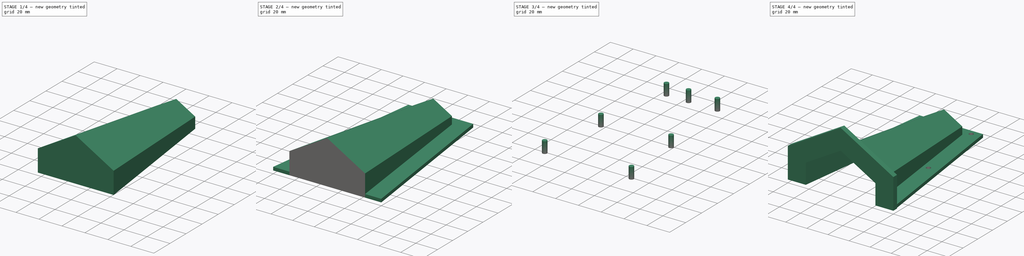
[diagram: build sequence overview — one tinted view per stage of 4, left to right]
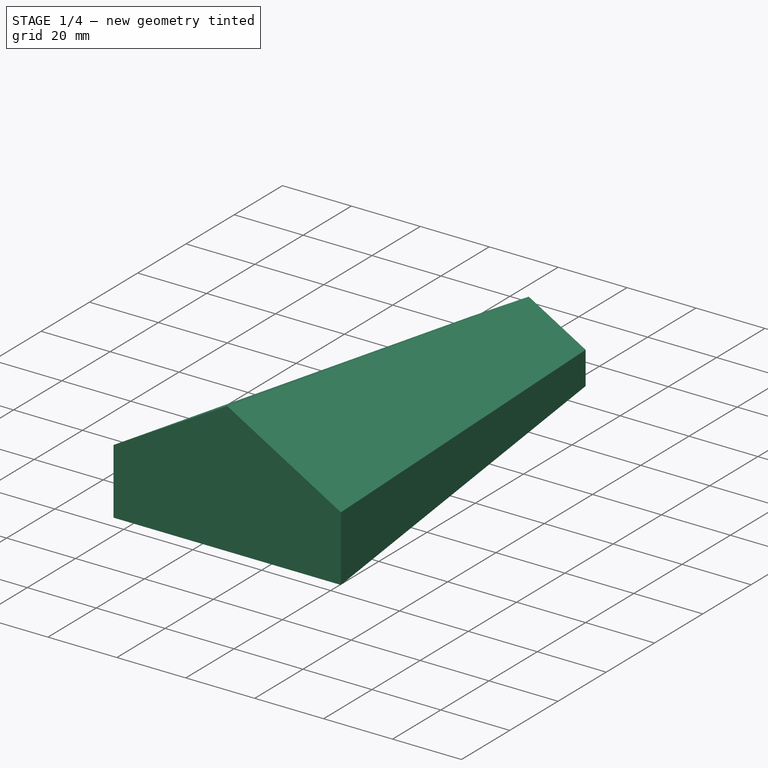
[diagram: stage 1 of 4 — iso view after this stage's code; geometry added in this stage tinted green]
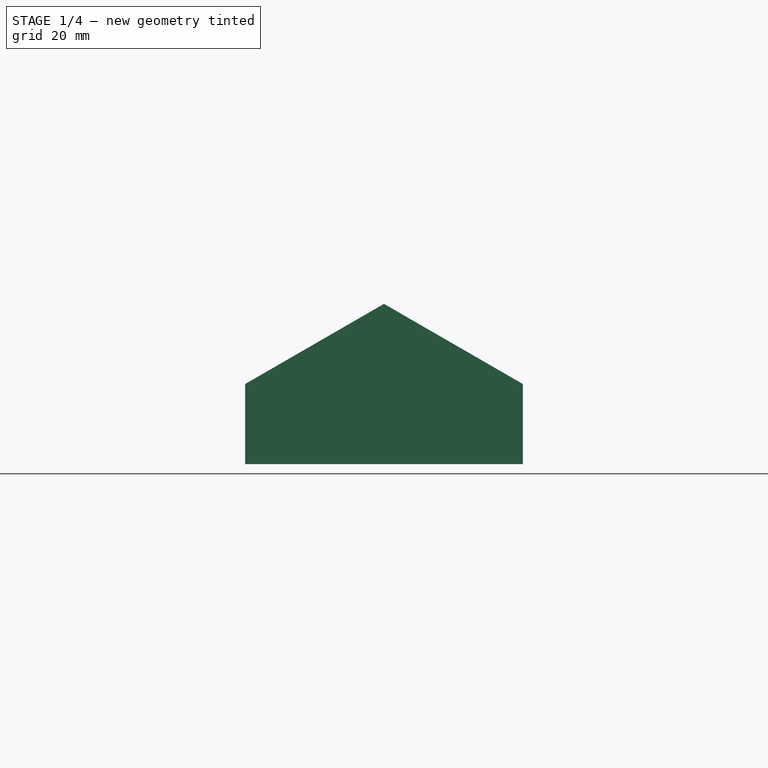
[diagram: stage 1 of 4 — front view after this stage's code; geometry added in this stage tinted green]
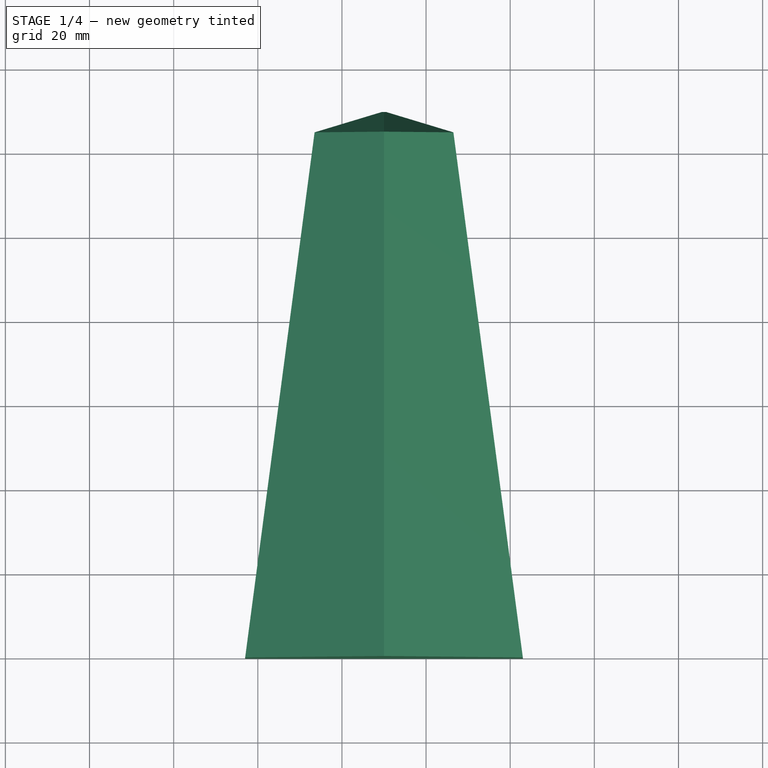
[diagram: stage 1 of 4 — top view after this stage's code; geometry added in this stage tinted green]
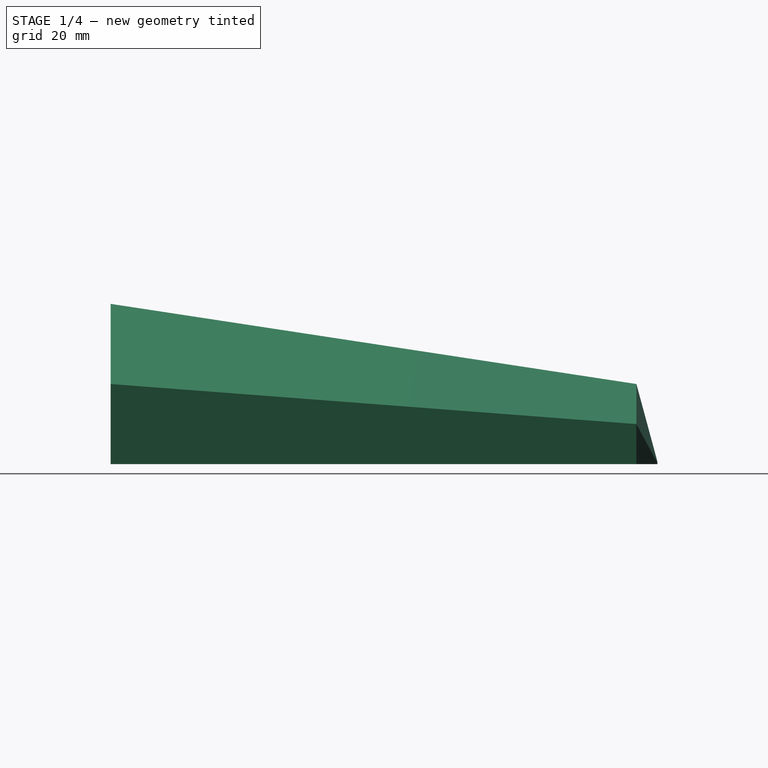
[diagram: stage 1 of 4 — right view after this stage's code; geometry added in this stage tinted green]
FCSTD DOCUMENT  (FreeCAD 0.20R29177 (Git))
Label: Zuckerhut-Form
License: All rights reserved
LicenseURL: http://en.wikipedia.org/wiki/All_rights_reserved
objects: Sketcher::SketchObject×9, Part::Face×9, Part::Extrusion×3, Part::Loft×3, Part::Fuse×3, Part::Cut×2, PartDesign::Body×1
note: 30 computed .brp shape members not serialized (recipe doc carries the construction recipe); baked Part::Feature solids carry a one-line shape summary decoded from their .brp

FEATURE [Sketcher::SketchObject] Sketch
  FullyConstrained = true
  sketch-geometry (4):
    g0: LineSegment StartX=0 StartY=0 StartZ=0 EndX=100 EndY=0 EndZ=0
    g1: LineSegment StartX=100 StartY=0 StartZ=0 EndX=80 EndY=150 EndZ=0
    g2: LineSegment StartX=80 StartY=150 StartZ=0 EndX=20 EndY=150 EndZ=0
    g3: LineSegment StartX=20 StartY=150 StartZ=0 EndX=0 EndY=0 EndZ=0
  constraints (11):
    c: Coincident(g0,g1)
    c: Coincident(g1,g2)
    c: Coincident(g2,g3)
    c: Coincident(g3,g0)
    c: Horizontal(g0)
    c: Horizontal(g2)
    c: Coincident(g0,g-1)
    c: DistanceY(g1,g1) = 150
    c: DistanceX(g0,g0) = 100
    c: DistanceX(g2,g2) = 60
    c: DistanceX(g0,g2) = 20
FEATURE [Part::Face] Face
  FaceMakerClass = Part::FaceMakerBullseye
  Sources = -> [Sketch]
FEATURE [Part::Extrusion] Extrude
  Base = -> Face
  Dir = (0,0,1)
  DirMode = 2
  FaceMakerClass = Part::FaceMakerBullseye
  LengthFwd = 3
  LengthRev = 0
  Solid = false
  Symmetric = false
FEATURE [Part::Loft] Loft001
  Closed = false
  MaxDegree = 5
  Ruled = false
  Sections = -> [Face003,Face004]
  Solid = true
FEATURE [Part::Face] Face006
  FaceMakerClass = Part::FaceMakerBullseye
  Placement = pos=(0,125,0) rot=(0,0,1;0rad)
  Sources = -> [Sketch004]
FEATURE [Part::Loft] Loft002
  Closed = false
  MaxDegree = 5
  Ruled = false
  Sections = -> [Face006,Face005]
  Solid = true
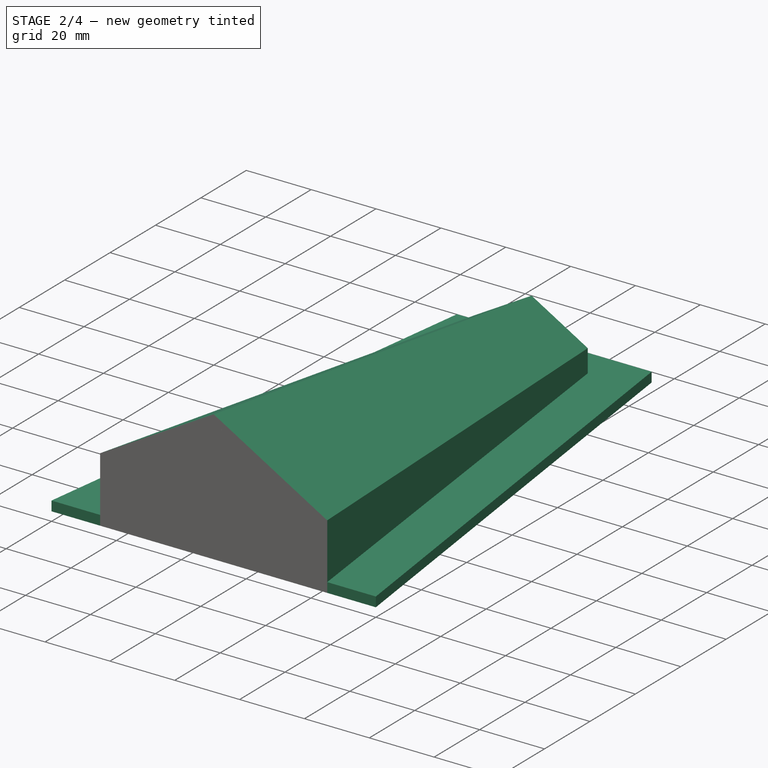
[diagram: stage 2 of 4 — iso view after this stage's code; geometry added in this stage tinted green]
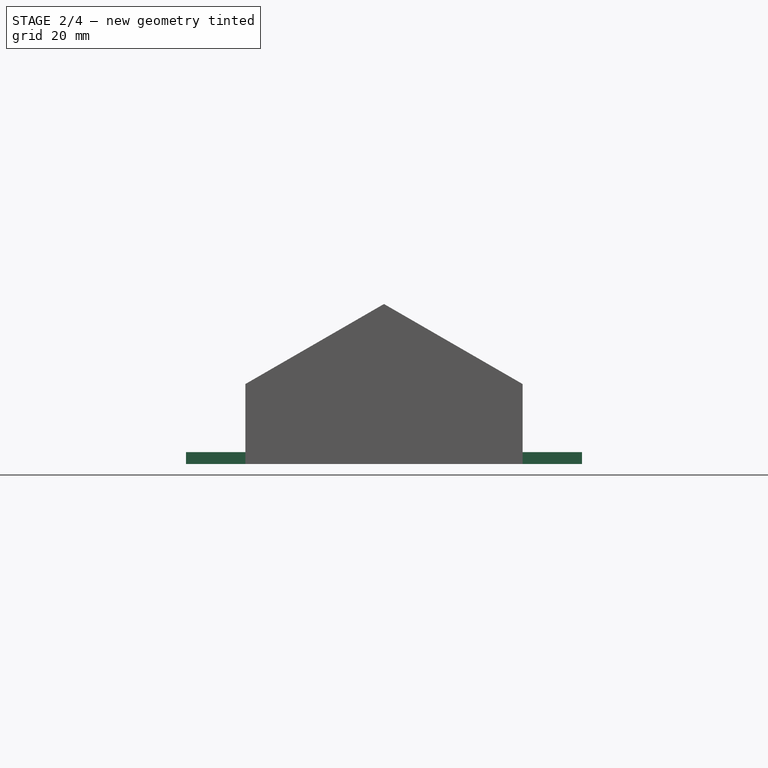
[diagram: stage 2 of 4 — front view after this stage's code; geometry added in this stage tinted green]
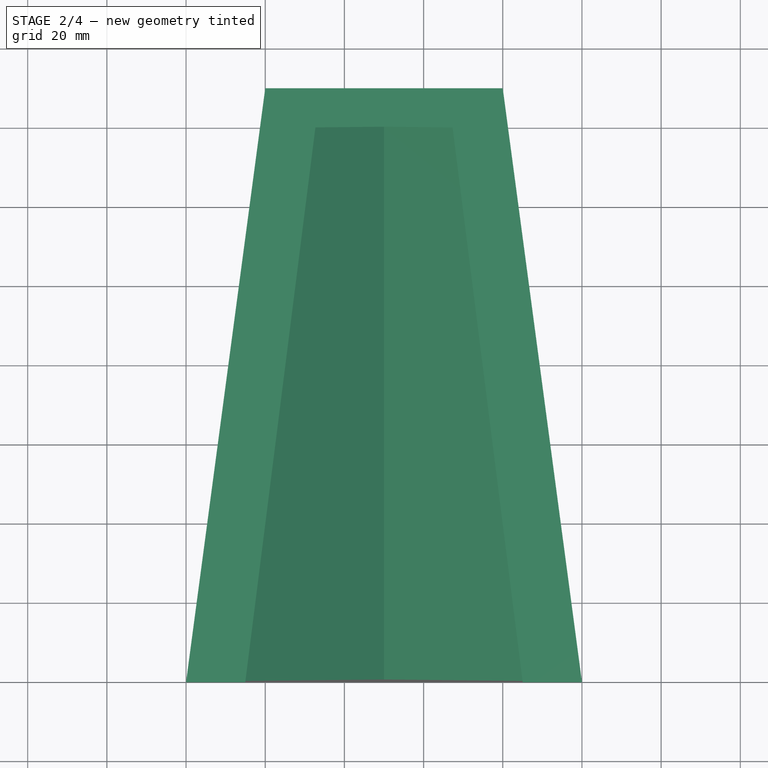
[diagram: stage 2 of 4 — top view after this stage's code; geometry added in this stage tinted green]
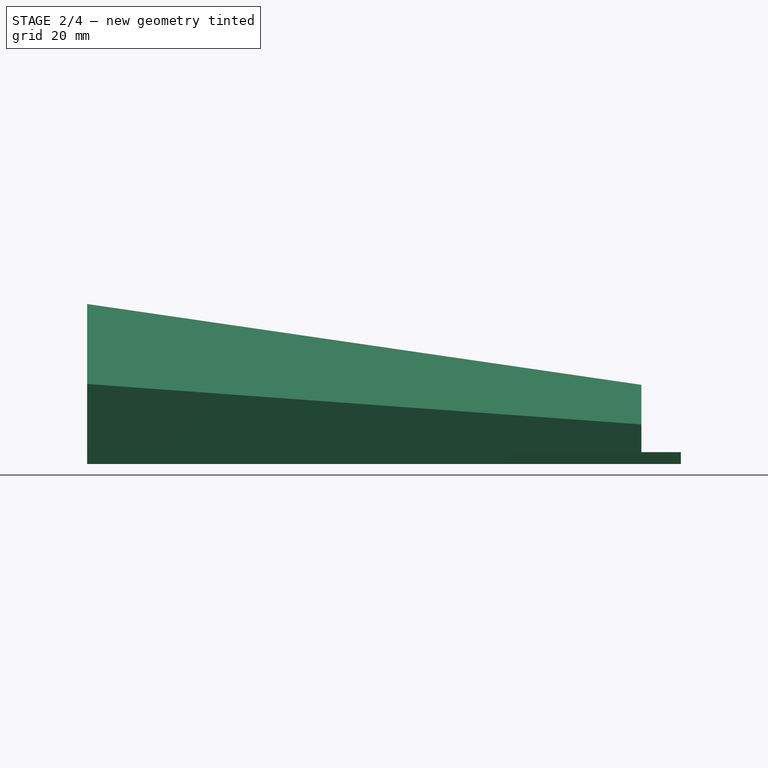
[diagram: stage 2 of 4 — right view after this stage's code; geometry added in this stage tinted green]
FEATURE [Sketcher::SketchObject] Sketch001
  ExternalGeometry = -> [Extrude]
  FullyConstrained = true
  MapMode = 5
  Placement = pos=(0,0,0) rot=(1,0,0;1.5708rad)
  Support = -> [Extrude]
  sketch-geometry (7):
    g0: LineSegment StartX=85 StartY=0 StartZ=0 EndX=85 EndY=20.2073 EndZ=0
    g1: LineSegment StartX=15 StartY=0 StartZ=0 EndX=15 EndY=20.2073 EndZ=0
    g2: LineSegment StartX=15 StartY=20.2073 StartZ=0 EndX=50 EndY=40.4145 EndZ=0
    g3: LineSegment StartX=50 StartY=40.4145 StartZ=0 EndX=85 EndY=20.2073 EndZ=0
    g4: LineSegment StartX=50 StartY=40.4145 StartZ=0 EndX=50 EndY=0 EndZ=0
    g5: LineSegment StartX=50 StartY=0 StartZ=0 EndX=15 EndY=20.2073 EndZ=0
    g6: LineSegment StartX=15 StartY=0 StartZ=0 EndX=85 EndY=0 EndZ=0
  constraints (20):
    c: Vertical(g0)
    c: Vertical(g1)
    c: Coincident(g2,g1)
    c: Coincident(g3,g2)
    c: Coincident(g3,g0)
    c: Equal(g2,g3)
    c: Angle(g2,g3) = 2.0944
    c: Equal(g1,g0)
    c: Coincident(g4,g2)
    c: Vertical(g4)
    c: Coincident(g5,g4)
    c: Coincident(g5,g1)
    c: Equal(g5,g4)
    c: Horizontal(g4,g1)
    c: PointOnObject(g1,g-1)
    c: DistanceX(g-1,g1) = 15
    c: PointOnObject(g0,g-1)
    c: DistanceX(g0,g-3) = 15
    c: Coincident(g6,g1)
    c: Coincident(g6,g0)
FEATURE [Part::Face] Face001
  FaceMakerClass = Part::FaceMakerBullseye
  Sources = -> [Sketch001]
FEATURE [Sketcher::SketchObject] Sketch002
  ExternalGeometry = -> [Sketch001]
  FullyConstrained = true
  MapMode = 5
  Placement = pos=(0,0,0) rot=(1,0,0;1.5708rad)
  sketch-geometry (7):
    g0: LineSegment StartX=32.6795 StartY=0 StartZ=0 EndX=32.6795 EndY=10 EndZ=0
    g1: LineSegment StartX=32.6795 StartY=10 StartZ=0 EndX=50 EndY=20 EndZ=0
    g2: LineSegment StartX=67.3205 StartY=0 StartZ=0 EndX=67.3205 EndY=10 EndZ=0
    g3: LineSegment StartX=67.3205 StartY=10 StartZ=0 EndX=50 EndY=20 EndZ=0
    g4: LineSegment StartX=32.6795 StartY=0 StartZ=0 EndX=67.3205 EndY=0 EndZ=0
    g5: LineSegment StartX=50 StartY=20 StartZ=0 EndX=50 EndY=0 EndZ=0
    g6: LineSegment StartX=50 StartY=0 StartZ=0 EndX=32.6795 EndY=10 EndZ=0
  constraints (20):
    c: PointOnObject(g0,g-1)
    c: Vertical(g0)
    c: Coincident(g1,g0)
    c: PointOnObject(g2,g-1)
    c: Vertical(g2)
    c: Coincident(g3,g2)
    c: Coincident(g3,g1)
    c: Coincident(g4,g0)
    c: Coincident(g4,g2)
    c: Equal(g1,g3)
    c: Equal(g0,g2)
    c: Angle(g1,g3) = 2.0944
    c: Coincident(g5,g1)
    c: Vertical(g5)
    c: Coincident(g6,g5)
    c: Coincident(g6,g0)
    c: Angle(g5,g6) = 1.0472
    c: PointOnObject(g5,g-1)
    c: DistanceY(g0,g1) = 20
    c: Vertical(g-4,g1)
FEATURE [Part::Face] Face002
  FaceMakerClass = Part::FaceMakerBullseye
  Placement = pos=(0,140,0) rot=(0,0,1;0rad)
  Sources = -> [Sketch002]
FEATURE [Sketcher::SketchObject] Sketch003
  ExternalGeometry = -> [Sketch001]
  FullyConstrained = true
  MapMode = 5
  Placement = pos=(0,0,0) rot=(1,0,0;1.5708rad)
  sketch-geometry (7):
    g0: LineSegment StartX=17 StartY=0 StartZ=0 EndX=17 EndY=19.0526 EndZ=0
    g1: LineSegment StartX=17 StartY=19.0526 StartZ=0 EndX=50 EndY=38.1051 EndZ=0
    g2: LineSegment StartX=83 StartY=0 StartZ=0 EndX=83 EndY=19.0526 EndZ=0
    g3: LineSegment StartX=83 StartY=19.0526 StartZ=0 EndX=50 EndY=38.1051 EndZ=0
    g4: LineSegment StartX=17 StartY=19.0526 StartZ=0 EndX=50 EndY=0 EndZ=0
    g5: LineSegment StartX=50 StartY=0 StartZ=0 EndX=50 EndY=38.1051 EndZ=0
    g6: LineSegment StartX=17 StartY=0 StartZ=0 EndX=83 EndY=0 EndZ=0
  constraints (20):
    c: PointOnObject(g0,g-1)
    c: Vertical(g0)
    c: Coincident(g1,g0)
    c: PointOnObject(g2,g-1)
    c: Vertical(g2)
    c: Coincident(g3,g2)
    c: Coincident(g3,g1)
    c: Equal(g1,g3)
    c: Equal(g0,g2)
    c: Angle(g1,g3) = 2.0944
    c: Vertical(g-4,g1)
    c: DistanceX(g-3,g0) = 2
    c: Coincident(g4,g0)
    c: Coincident(g5,g4)
    c: Coincident(g5,g1)
    c: Vertical(g5)
    c: Equal(g4,g5)
    c: PointOnObject(g4,g-1)
    c: Coincident(g6,g0)
    c: Coincident(g6,g2)
FEATURE [Sketcher::SketchObject] Sketch004
  ExternalGeometry = -> [Sketch001]
  FullyConstrained = true
  MapMode = 5
  Placement = pos=(0,0,0) rot=(1,0,0;1.5708rad)
  sketch-geometry (7):
    g0: LineSegment StartX=33.5 StartY=0 StartZ=0 EndX=33.5 EndY=9.52628 EndZ=0
    g1: LineSegment StartX=66.5 StartY=0 StartZ=0 EndX=66.5 EndY=9.52628 EndZ=0
    g2: LineSegment StartX=66.5 StartY=9.52628 StartZ=0 EndX=50 EndY=19.0526 EndZ=0
    g3: LineSegment StartX=33.5 StartY=9.52628 StartZ=0 EndX=50 EndY=19.0526 EndZ=0
    g4: LineSegment StartX=33.5 StartY=9.52628 StartZ=0 EndX=50 EndY=-1.8e-15 EndZ=0
    g5: LineSegment StartX=50 StartY=-1.8e-15 StartZ=0 EndX=50 EndY=19.0526 EndZ=0
    g6: LineSegment StartX=33.5 StartY=0 StartZ=0 EndX=66.5 EndY=0 EndZ=0
  constraints (20):
    c: PointOnObject(g0,g-1)
    c: Vertical(g0)
    c: PointOnObject(g1,g-1)
    c: Vertical(g1)
    c: Coincident(g2,g1)
    c: Coincident(g3,g0)
    c: Coincident(g3,g2)
    c: Equal(g3,g2)
    c: Equal(g1,g0)
    c: Vertical(g-4,g2)
    c: Coincident(g4,g0)
    c: Coincident(g5,g4)
    c: Coincident(g5,g2)
    c: Vertical(g5)
    c: Equal(g4,g5)
    c: Angle(g5,g4) = 1.0472
    c: PointOnObject(g4,g-1)
    c: DistanceX(g0,g1) = 33
    c: Coincident(g6,g0)
    c: Coincident(g6,g1)
FEATURE [Part::Face] Face003
  FaceMakerClass = Part::FaceMakerBullseye
  Placement = pos=(0,125,0) rot=(0,0,1;0rad)
  Sources = -> [Sketch004]
FEATURE [Part::Face] Face004
  FaceMakerClass = Part::FaceMakerBullseye
  Sources = -> [Sketch003]
FEATURE [Sketcher::SketchObject] Sketch005
  ExternalGeometry = -> [Sketch001]
  FullyConstrained = true
  MapMode = 5
  Placement = pos=(0,0,0) rot=(1,0,0;1.5708rad)
  sketch-geometry (7):
    g0: LineSegment StartX=49.5 StartY=0 StartZ=0 EndX=49.5 EndY=0.288675 EndZ=0
    g1: LineSegment StartX=50.5 StartY=0 StartZ=0 EndX=50.5 EndY=0.288675 EndZ=0
    g2: LineSegment StartX=49.5 StartY=0.288675 StartZ=0 EndX=50 EndY=0.57735 EndZ=0
    g3: LineSegment StartX=50 StartY=0.57735 StartZ=0 EndX=50.5 EndY=0.288675 EndZ=0
    g4: LineSegment StartX=49.5 StartY=0 StartZ=0 EndX=50.5 EndY=0 EndZ=0
    g5: LineSegment StartX=49.5 StartY=0.288675 StartZ=0 EndX=50 EndY=0 EndZ=0
    g6: LineSegment StartX=50 StartY=0 StartZ=0 EndX=50 EndY=0.57735 EndZ=0
  constraints (20):
    c: PointOnObject(g0,g-1)
    c: Vertical(g0)
    c: PointOnObject(g1,g-1)
    c: Vertical(g1)
    c: Coincident(g2,g0)
    c: Coincident(g3,g2)
    c: Coincident(g3,g1)
    c: Equal(g3,g2)
    c: Equal(g0,g1)
    c: Coincident(g4,g0)
    c: Coincident(g4,g1)
    c: Coincident(g5,g0)
    c: Coincident(g6,g5)
    c: Coincident(g6,g2)
    c: Vertical(g6)
    c: PointOnObject(g5,g4)
    c: Angle(g6,g5) = 1.0472
    c: DistanceX(g0,g1) = 1
    c: Equal(g6,g5)
    c: Vertical(g-4,g2)
FEATURE [Part::Face] Face005
  FaceMakerClass = Part::FaceMakerBullseye
  Placement = pos=(0,130,0) rot=(0,0,1;0rad)
  Sources = -> [Sketch005]
FEATURE [Sketcher::SketchObject] Sketch006
  FullyConstrained = true
  MapMode = 5
  Placement = pos=(0,125,0) rot=(0,0.707107,0.707107;3.14159rad)
  Support = -> [Face003]
FEATURE [PartDesign::Body] Body
  Origin = -> Origin
FEATURE [Part::Loft] Loft
  Closed = false
  MaxDegree = 5
  Ruled = false
  Sections = -> [Face001,Face002]
  Solid = true
FEATURE [Part::Fuse] Fusion
  Base = -> Extrude
  Tool = -> Loft
FEATURE [Part::Fuse] Fusion001
  Base = -> Loft001
  Tool = -> Loft002
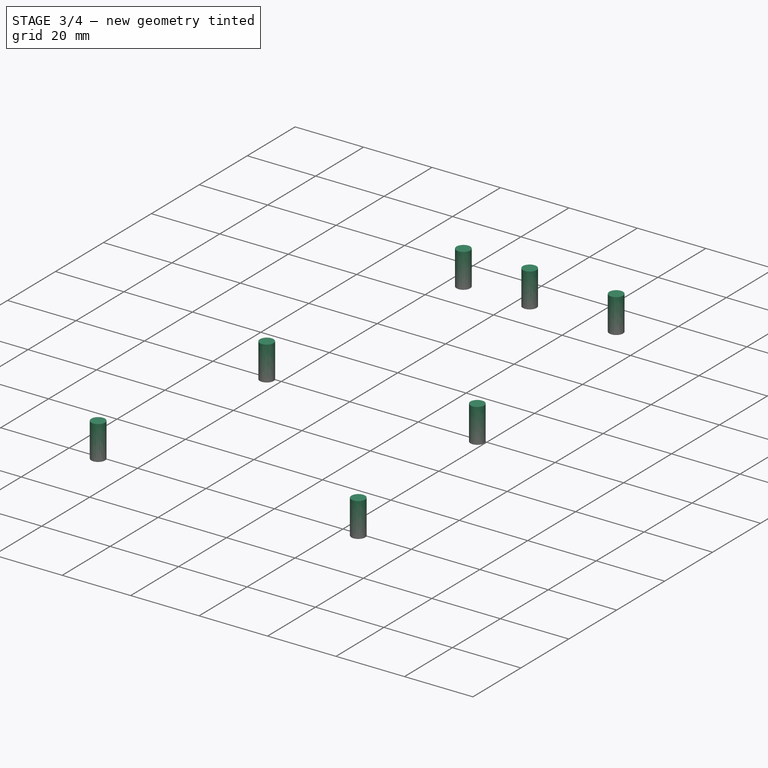
[diagram: stage 3 of 4 — iso view after this stage's code; geometry added in this stage tinted green]
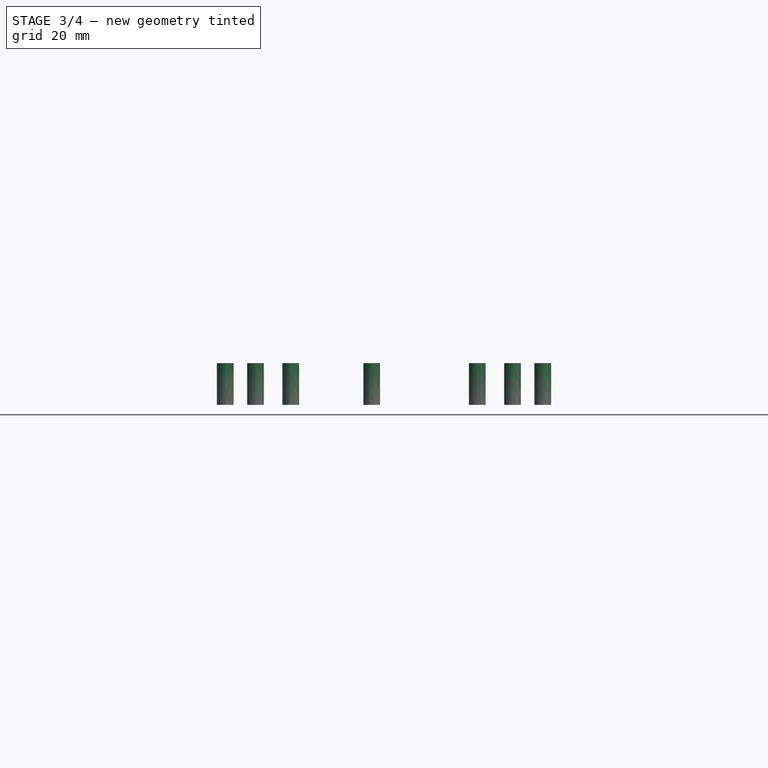
[diagram: stage 3 of 4 — front view after this stage's code; geometry added in this stage tinted green]
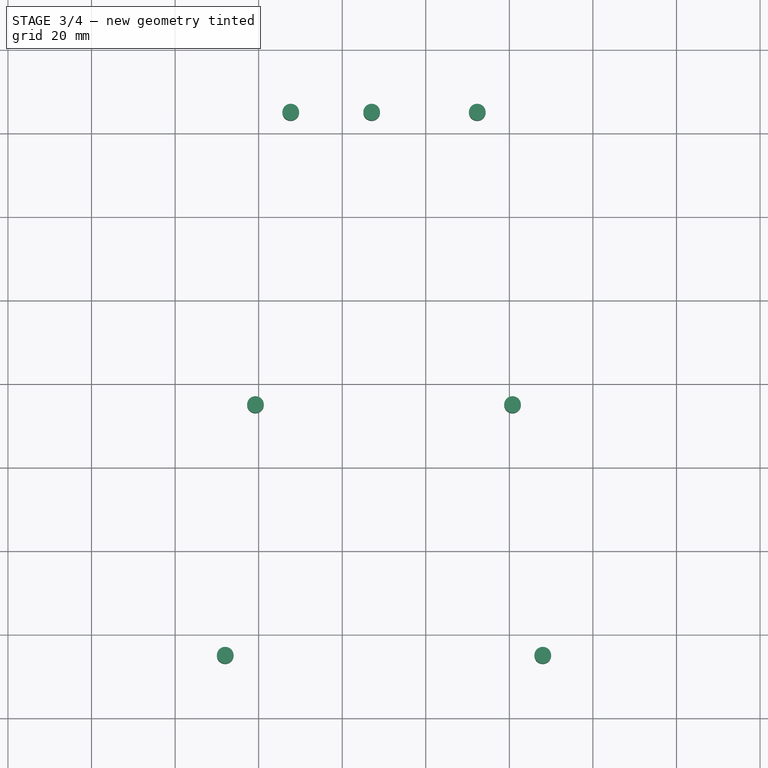
[diagram: stage 3 of 4 — top view after this stage's code; geometry added in this stage tinted green]
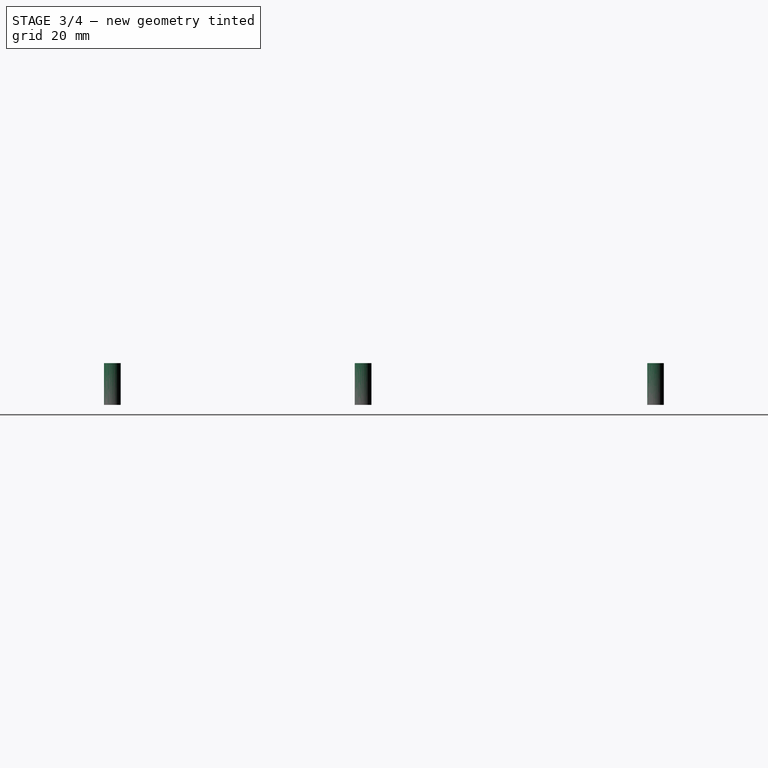
[diagram: stage 3 of 4 — right view after this stage's code; geometry added in this stage tinted green]
FEATURE [Part::Cut] Cut
  Base = -> Fusion
  Tool = -> Fusion001
FEATURE [Sketcher::SketchObject] Sketch007
  ExternalGeometry = -> [Sketch,Cut]
  FullyConstrained = false
  MapMode = 5
  Placement = pos=(0,0,0) rot=(1,0,0;3.14159rad)
  Support = -> [Cut]
  sketch-geometry (11):
    g0: Circle CenterX=27.6795 CenterY=-145 CenterZ=0 NormalX=0 NormalY=0 NormalZ=1 AngleXU=0 Radius=2
    g1: Circle CenterX=47.0508 CenterY=-145 CenterZ=0 NormalX=0 NormalY=0 NormalZ=1 AngleXU=0 Radius=2
    g2: Circle CenterX=72.3205 CenterY=-145 CenterZ=0 NormalX=0 NormalY=0 NormalZ=1 AngleXU=0 Radius=2
    g3: Circle CenterX=80.7633 CenterY=-75 CenterZ=0 NormalX=0 NormalY=0 NormalZ=1 AngleXU=0 Radius=2
    g4: Circle CenterX=19.2367 CenterY=-75 CenterZ=0 NormalX=0 NormalY=0 NormalZ=1 AngleXU=0 Radius=2
    g5: Circle CenterX=12 CenterY=-15 CenterZ=0 NormalX=0 NormalY=0 NormalZ=1 AngleXU=0 Radius=2
    g6: Circle CenterX=88 CenterY=-15 CenterZ=0 NormalX=0 NormalY=0 NormalZ=1 AngleXU=0 Radius=2
    g7: LineSegment StartX=12 StartY=-15 StartZ=0 EndX=27.6795 EndY=-145 EndZ=0
    g8: LineSegment StartX=72.3205 StartY=-145 StartZ=0 EndX=88 EndY=-15 EndZ=0
    g9: LineSegment StartX=19.2367 StartY=-75 StartZ=0 EndX=19.2367 EndY=-150 EndZ=0
    g10: LineSegment StartX=19.2367 StartY=-75 StartZ=0 EndX=19.2367 EndY=0 EndZ=0
  constraints (30):
    c: Diameter(g5) = 4
    c: Diameter(g6) = 4
    c: Diameter(g4) = 4
    c: Diameter(g3) = 4
    c: Diameter(g0) = 4
    c: Diameter(g1) = 4
    c: Diameter(g2) = 4
    c: Horizontal(g5,g6)
    c: Horizontal(g4,g3)
    c: Horizontal(g0,g1)
    c: Horizontal(g0,g2)
    c: DistanceY(g-4,g2) = 5
    c: DistanceY(g5,g-1) = 15
    c: Coincident(g7,g5)
    c: Coincident(g7,g0)
    c: Coincident(g8,g2)
    c: Coincident(g8,g6)
    c: DistanceX(g6,g-4) = 12
    c: DistanceX(g-1,g5) = 12
    c: PointOnObject(g4,g7)
    c: PointOnObject(g3,g8)
    c: DistanceX(g0,g-5) = 5
    c: DistanceX(g-5,g2) = 5
    c: Coincident(g9,g4)
    c: PointOnObject(g9,g-3)
    c: Vertical(g9)
    c: Coincident(g10,g4)
    c: PointOnObject(g10,g-1)
    c: Vertical(g10)
    c: Equal(g10,g9)
FEATURE [Part::Face] Face007
  FaceMakerClass = Part::FaceMakerBullseye
  Sources = -> [Sketch007]
FEATURE [Part::Extrusion] Extrude001
  Base = -> Face007
  Dir = (0,0,1)
  DirMode = 2
  FaceMakerClass = Part::FaceMakerBullseye
  LengthFwd = 10
  LengthRev = 0
  Solid = false
  Symmetric = false
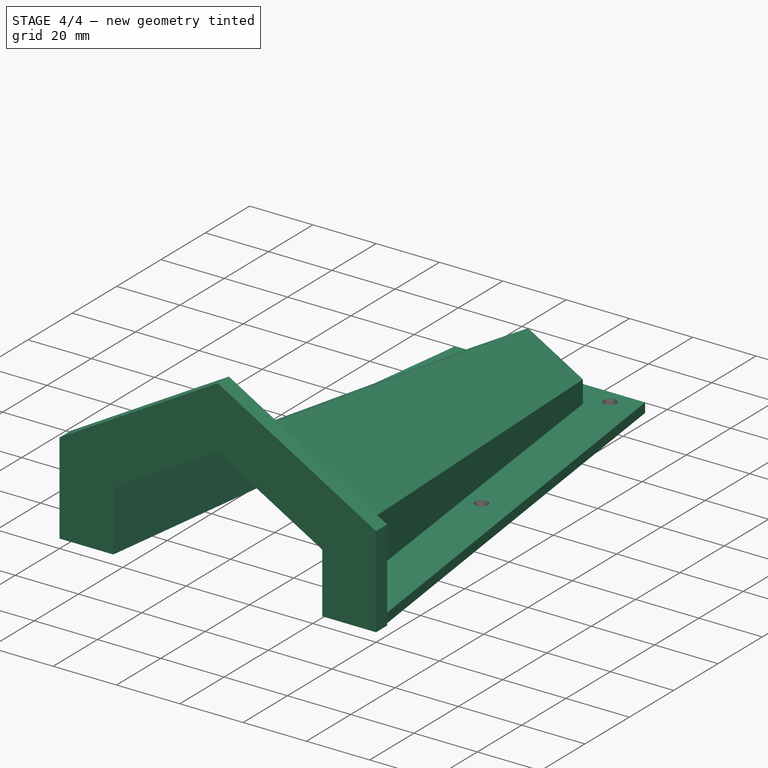
[diagram: stage 4 of 4 — iso view after this stage's code; geometry added in this stage tinted green]
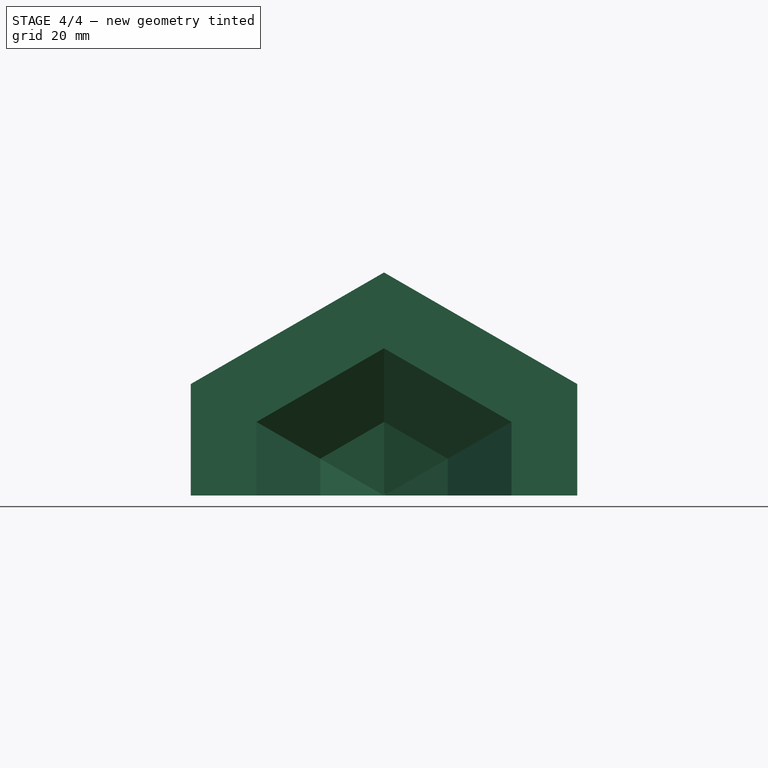
[diagram: stage 4 of 4 — front view after this stage's code; geometry added in this stage tinted green]
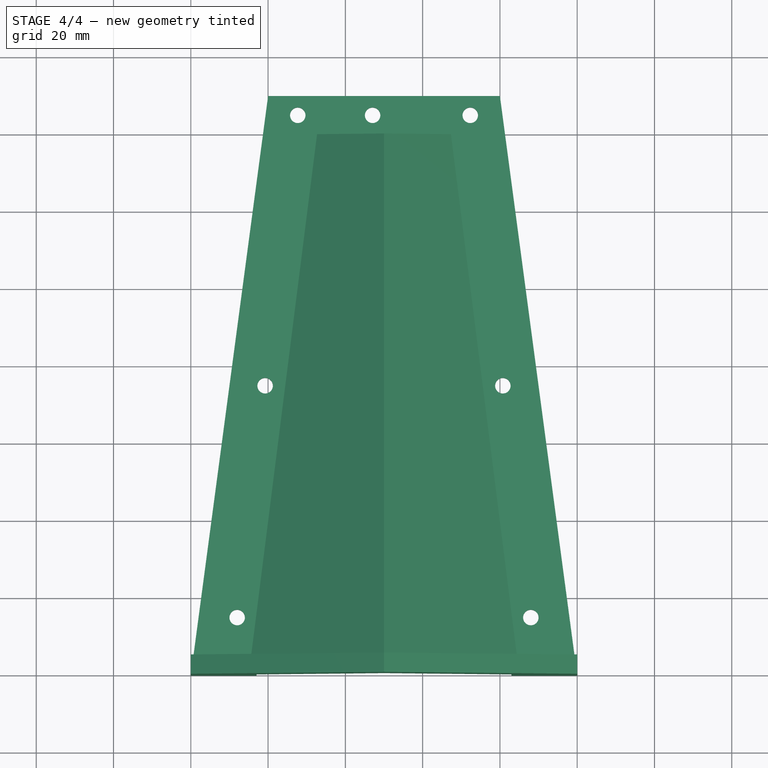
[diagram: stage 4 of 4 — top view after this stage's code; geometry added in this stage tinted green]
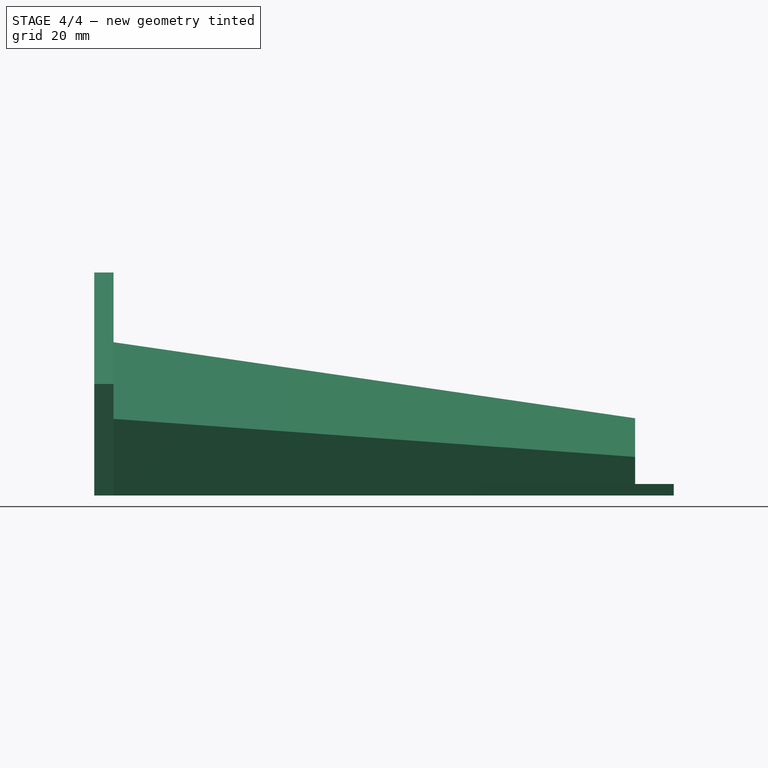
[diagram: stage 4 of 4 — right view after this stage's code; geometry added in this stage tinted green]
FEATURE [Part::Cut] Cut001
  Base = -> Cut
  Tool = -> Extrude001
FEATURE [Sketcher::SketchObject] Sketch008
  ExternalGeometry = -> [Sketch003,Cut001]
  FullyConstrained = true
  MapMode = 5
  Placement = pos=(0,0,0) rot=(1,0,0;1.5708rad)
  Support = -> [Cut001]
  sketch-geometry (12):
    g0: LineSegment StartX=0 StartY=0 StartZ=0 EndX=0 EndY=28.8675 EndZ=0
    g1: LineSegment StartX=0 StartY=28.8675 StartZ=0 EndX=50 EndY=57.735 EndZ=0
    g2: LineSegment StartX=100 StartY=0 StartZ=0 EndX=100 EndY=28.8675 EndZ=0
    g3: LineSegment StartX=100 StartY=28.8675 StartZ=0 EndX=50 EndY=57.735 EndZ=0
    g4: LineSegment StartX=0 StartY=28.8675 StartZ=0 EndX=50 EndY=0 EndZ=0
    g5: LineSegment StartX=50 StartY=0 StartZ=0 EndX=50 EndY=57.735 EndZ=0
    g6: LineSegment StartX=0 StartY=0 StartZ=0 EndX=17 EndY=0 EndZ=0
    g7: LineSegment StartX=17 StartY=0 StartZ=0 EndX=17 EndY=19.0526 EndZ=0
    g8: LineSegment StartX=17 StartY=19.0526 StartZ=0 EndX=50 EndY=38.1051 EndZ=0
    g9: LineSegment StartX=50 StartY=38.1051 StartZ=0 EndX=83 EndY=19.0526 EndZ=0
    g10: LineSegment StartX=83 StartY=19.0526 StartZ=0 EndX=83 EndY=0 EndZ=0
    g11: LineSegment StartX=83 StartY=0 StartZ=0 EndX=100 EndY=0 EndZ=0
  constraints (28):
    c: Coincident(g0,g-1)
    c: PointOnObject(g0,g-2)
    c: Coincident(g1,g0)
    c: Coincident(g2,g-7)
    c: Vertical(g2)
    c: Coincident(g3,g2)
    c: Coincident(g3,g1)
    c: Equal(g1,g3)
    c: Equal(g0,g2)
    c: Coincident(g4,g0)
    c: Coincident(g5,g4)
    c: Coincident(g5,g1)
    c: Vertical(g5)
    c: Equal(g5,g4)
    c: Angle(g5,g4) = 1.0472
    c: PointOnObject(g4,g-1)
    c: Coincident(g6,g0)
    c: Coincident(g6,g-5)
    c: Coincident(g7,g6)
    c: Coincident(g7,g-5)
    c: Coincident(g8,g7)
    c: Coincident(g8,g-4)
    c: Coincident(g9,g8)
    c: Coincident(g9,g-6)
    c: Coincident(g10,g9)
    c: Coincident(g10,g-6)
    c: Coincident(g11,g10)
    c: Coincident(g11,g2)
FEATURE [Part::Face] Face008
  FaceMakerClass = Part::FaceMakerBullseye
  Sources = -> [Sketch008]
FEATURE [Part::Extrusion] Extrude002
  Base = -> Sketch008
  Dir = (0,-1,2e-16)
  DirMode = 2
  FaceMakerClass = Part::FaceMakerBullseye
  LengthFwd = -5
  LengthRev = 0
  Solid = true
  Symmetric = false
FEATURE [Part::Fuse] Fusion002
  Base = -> Cut001
  Tool = -> Extrude002
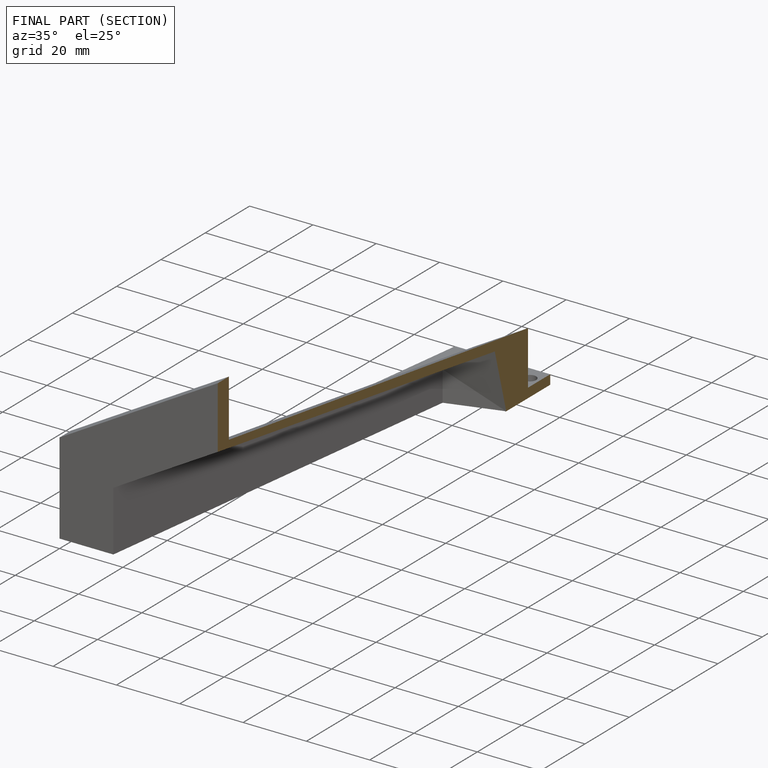
[diagram: finished part — half-section view (interior)]
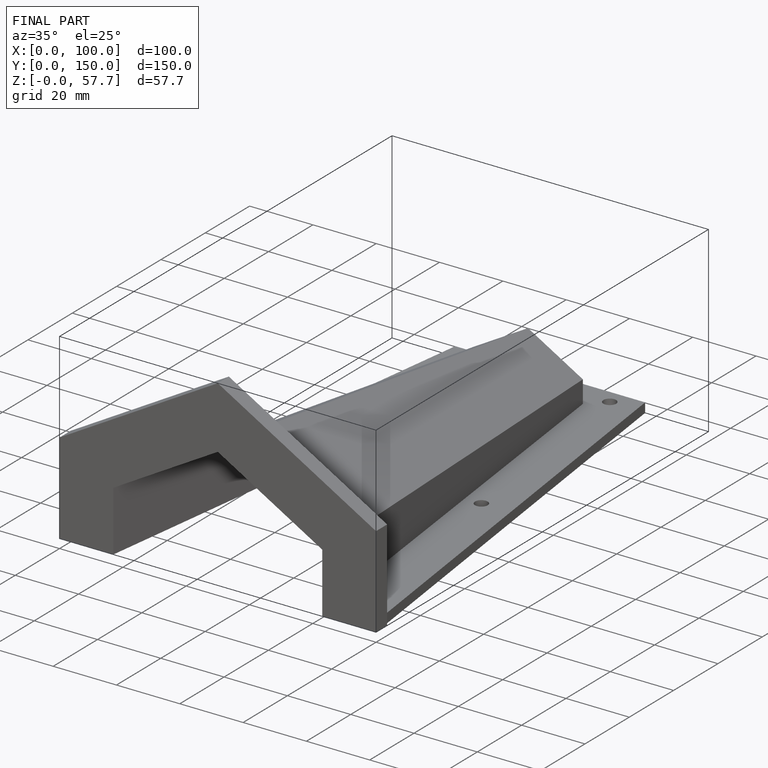
[diagram: finished part — iso view with bounding-box wireframe]
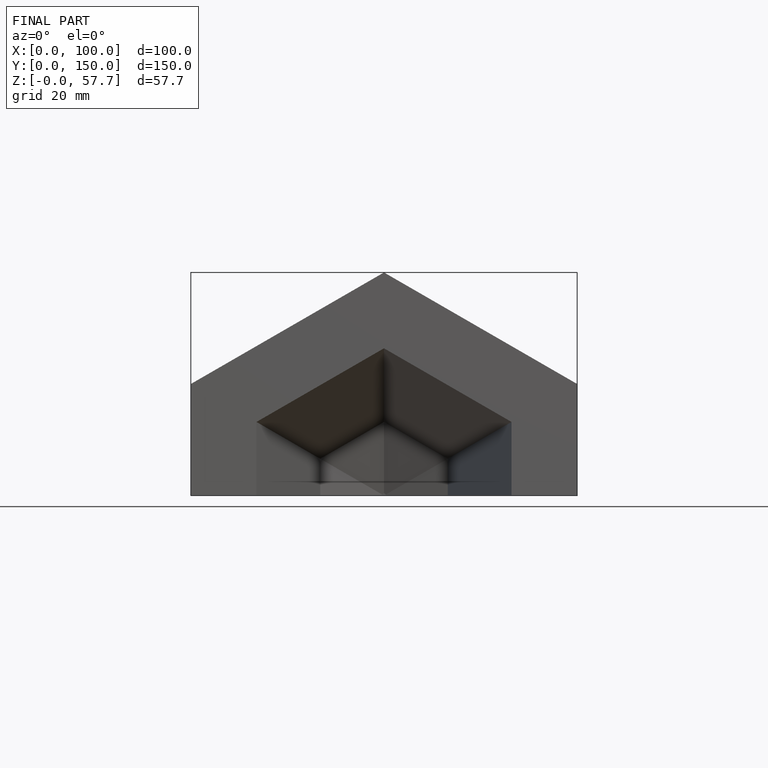
[diagram: finished part — front view with bounding-box wireframe]
